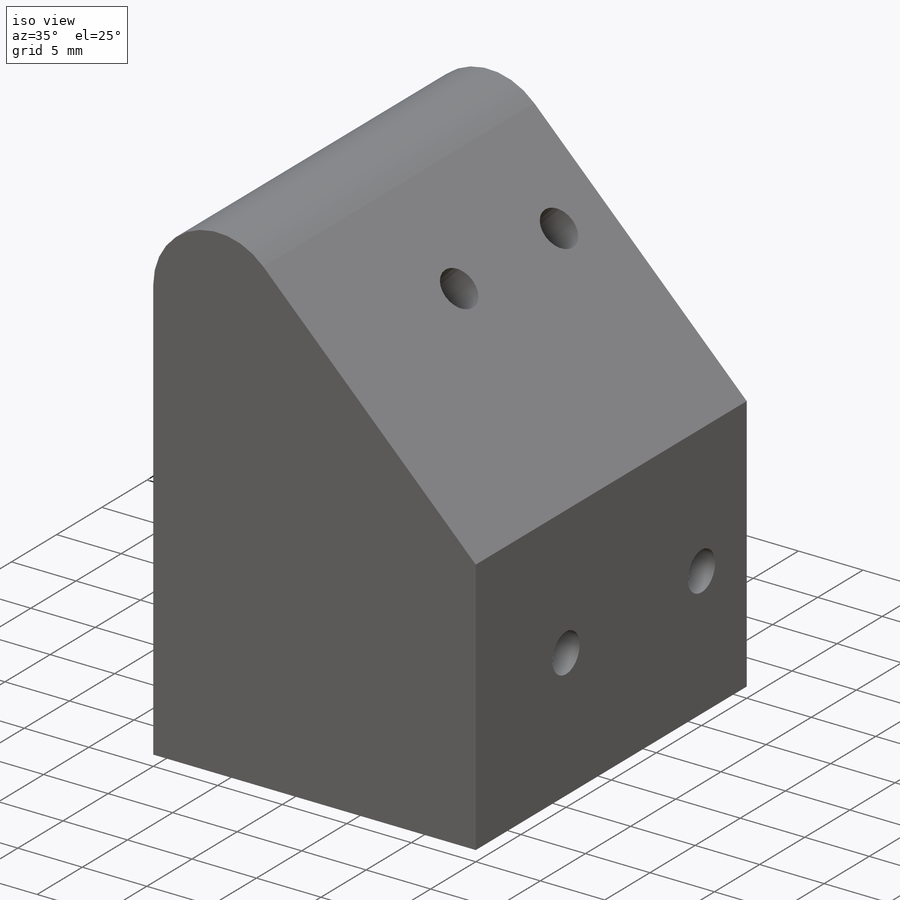
[diagram: iso view]
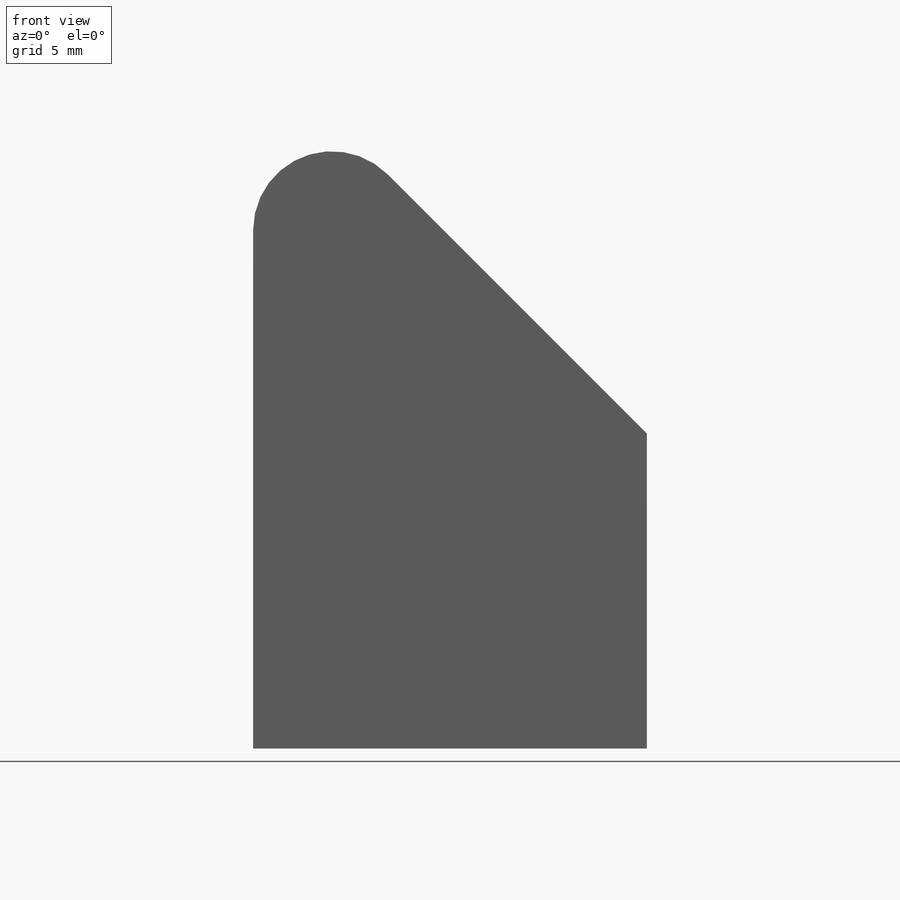
[diagram: front view]
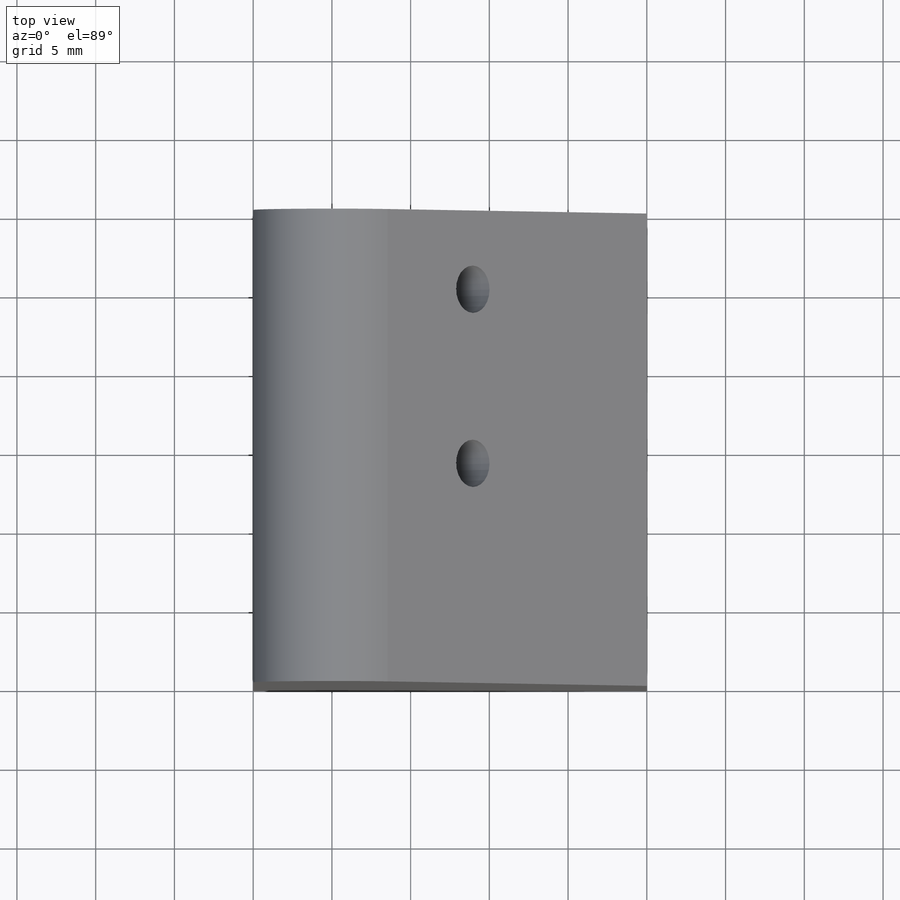
[diagram: top view]
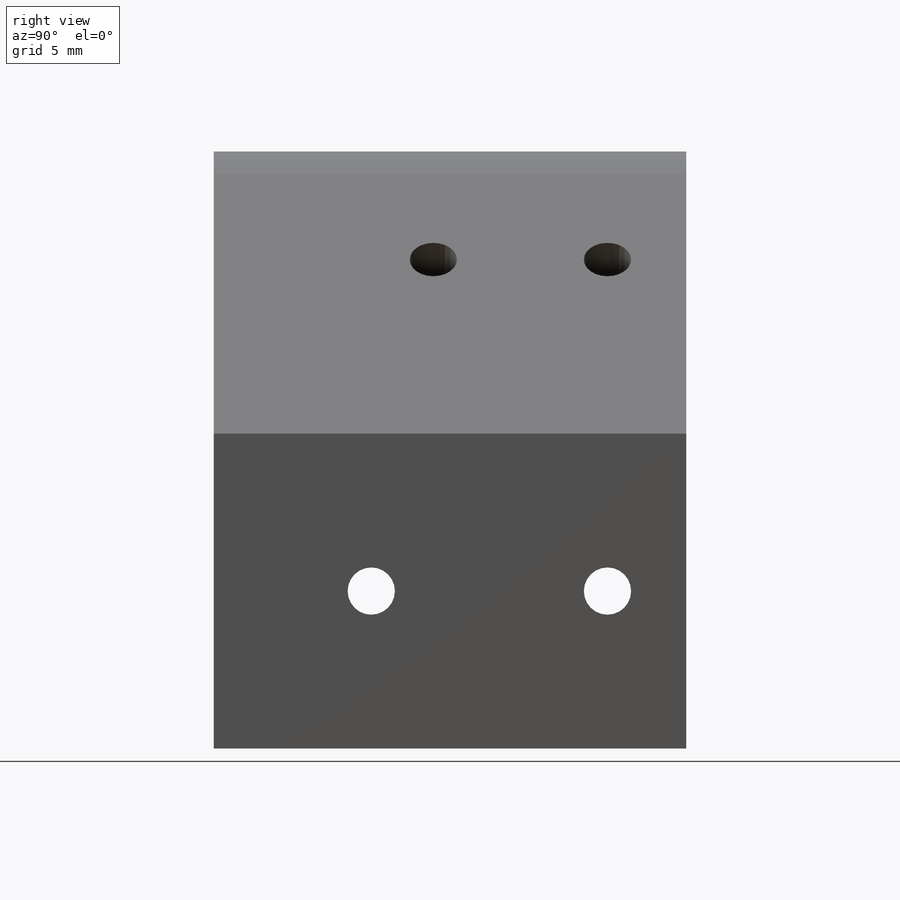
[diagram: right view]
SOLIDWORKS PART (.sldprt)
format: sldprt  version: not decoded by parser v0  size: 492,032 bytes
history: native  units: mm
features: sketch x4, plane x3, extrude x2, cut_extrude x2, material x1, fillet x1, move_body x1 (+10 scaffold rows collapsed; 1 parser-record rows omitted)
feature tree (25):
  scaffold x10  (default folders/planes/origin — collapsed)
  material  "Material <sin especificar>"
  plane  "Alzado"
  plane  "Planta"
  plane  "Vista lateral"
  sketch  "Croquis2"  dims[c1.D1=50.0mm c1.D2=30.0mm c1.D3=30.0mm c1.D5=~16.743657mm c2.D1=30.0mm c2.D4=20.0mm]
  extrude  "Saliente-Extruir2"  Depth=25mm
  sketch  "Croquis3"  dims[c1.D1=30.0mm c2.D1=45.0deg]
  extrude  "Saliente-Extruir3"  [1 undecoded]
  fillet  "Redondeo1"  Radius=5mm
  sketch  "Croquis8"  dims[D1=3.0mm]
  cut_extrude  "Cortar-Extruir5"  [1 undecoded]
  sketch  "Croquis9"  dims[D1=3.0mm]
  cut_extrude  "Cortar-Extruir6"  [1 undecoded]
  parser-record x1  (decoder bookkeeping rows leaked as tree rows — omitted from the tree; the rows remain in map.json)
  move_body  "Sólido-Mover/Copiar1"
decode coverage: 6 of 10 modeling features carry decoded parameters
note: ~ marks probable driven/reference dimensions
note: 3 parameter values undecoded
summary: no parameter record found for 3 features
note: suppression state not decoded; provenance and decode notes live in map.json
